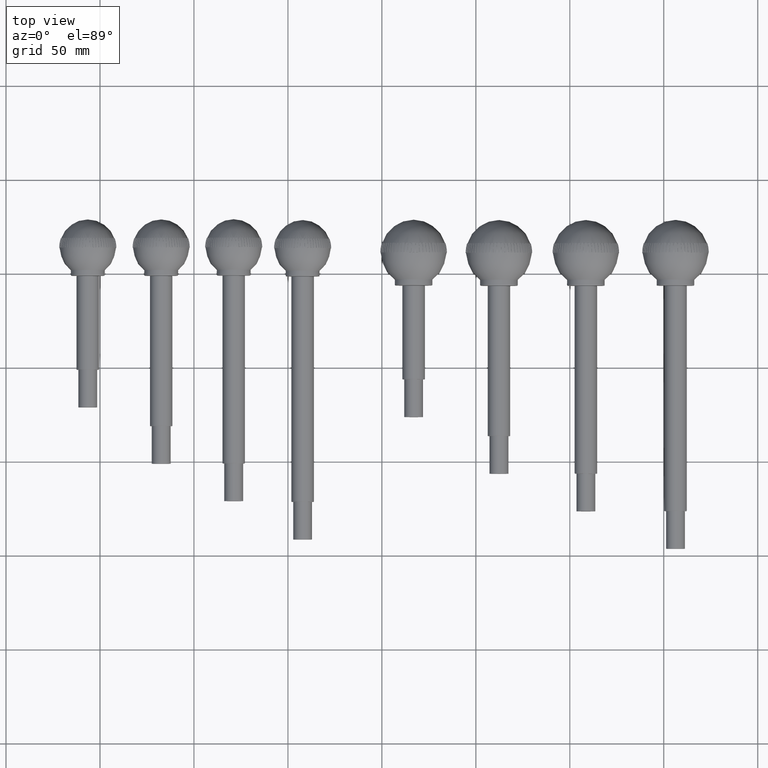
[diagram: clean part render]
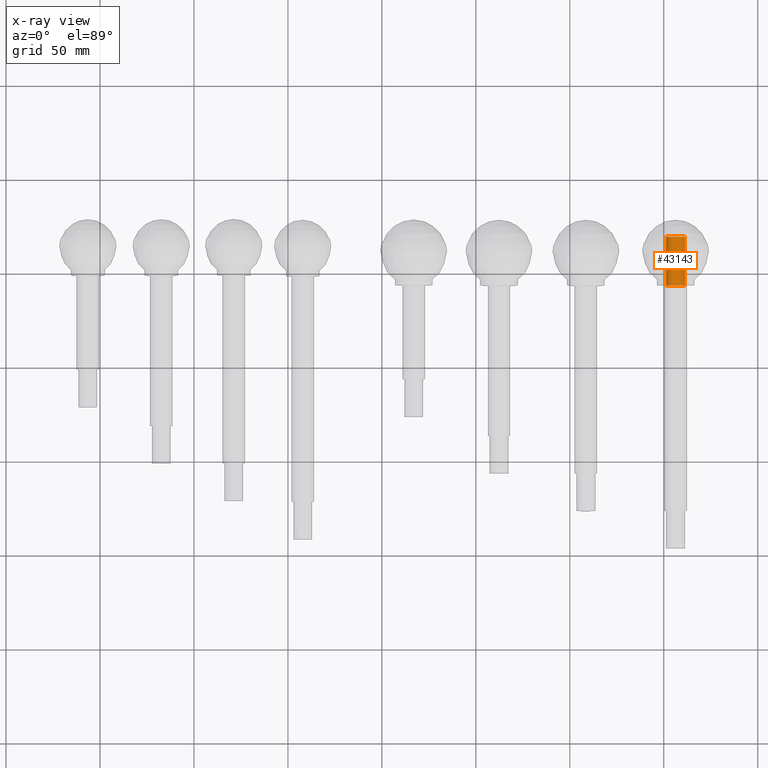
[diagram: x-ray — body ghosted, one internal face saturated and labeled with its STEP entity id]
A machine part, top view, then the same camera in x-ray: the body is ghosted and one INTERNAL B-rep face — a face not visible from any outside direction — is saturated and labeled: STEP entity #43143.
In plain terms, the highlighted cylindrical surface (bore or boss wall) has radius 5 mm, axis along (0, 1, -0).
Its self-contained STEP definition (entity closure, byte-faithful):
#6503=CYLINDRICAL_SURFACE('',#49650,5.);
#7007=FACE_BOUND('',#12604,.T.);
#9583=FACE_OUTER_BOUND('',#12603,.T.);
#12603=EDGE_LOOP('',(#37903));
#12604=EDGE_LOOP('',(#37904));
#16137=CIRCLE('',#48869,5.);
#16618=CIRCLE('',#49651,5.);
#20081=VERTEX_POINT('',#75462);
#20562=VERTEX_POINT('',#76965);
#25705=EDGE_CURVE('',#20081,#20081,#16137,.T.);
#26426=EDGE_CURVE('',#20562,#20562,#16618,.T.);
#37903=ORIENTED_EDGE('',*,*,#26426,.T.);
#37904=ORIENTED_EDGE('',*,*,#25705,.F.);
#43143=ADVANCED_FACE('',(#9583,#7007),#6503,.F.);
#48869=AXIS2_PLACEMENT_3D('',#75463,#62760,#62761);
#49650=AXIS2_PLACEMENT_3D('',#76964,#64562,#64563);
#49651=AXIS2_PLACEMENT_3D('',#76966,#64564,#64565);
#62760=DIRECTION('center_axis',(0.,1.,0.));
#62761=DIRECTION('ref_axis',(-1.,0.,0.));
#64562=DIRECTION('center_axis',(0.,1.,0.));
#64563=DIRECTION('ref_axis',(-1.,0.,0.));
#64564=DIRECTION('center_axis',(0.,1.,0.));
#64565=DIRECTION('ref_axis',(-1.,0.,0.));
#75462=CARTESIAN_POINT('',(5.,0.,6.12323399573677E-16));
#75463=CARTESIAN_POINT('Origin',(0.,0.,0.));
#76964=CARTESIAN_POINT('Origin',(0.,0.,0.));
#76965=CARTESIAN_POINT('',(5.,26.,6.12323399573677E-16));
#76966=CARTESIAN_POINT('Origin',(0.,26.,0.));